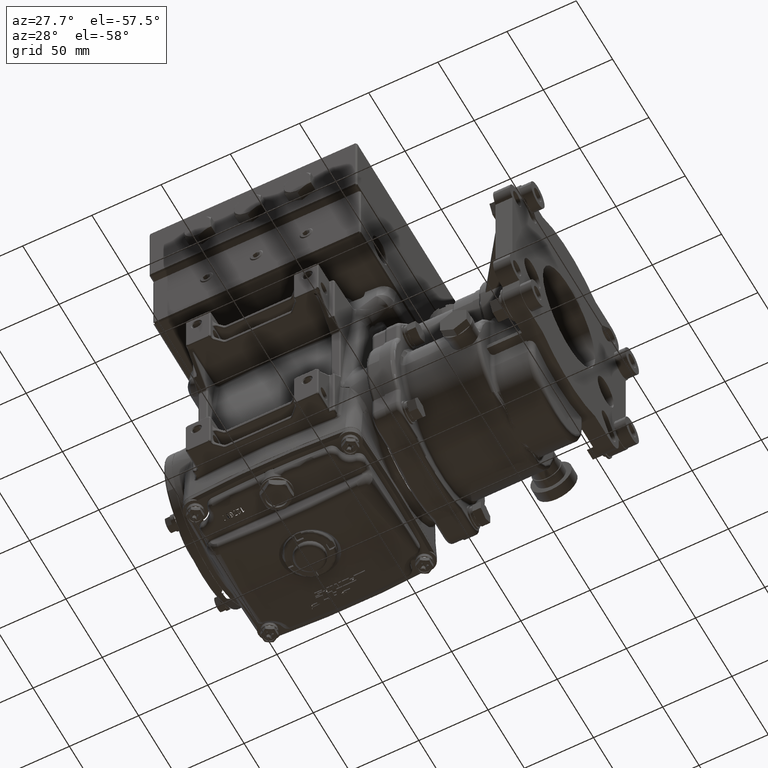
[diagram: clean part render]
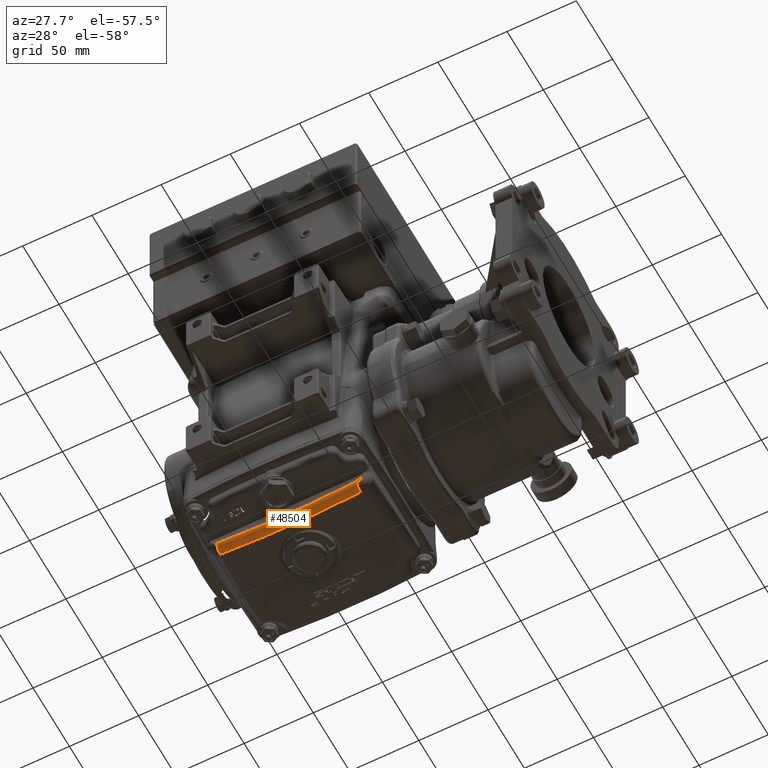
[diagram: same view with one face highlighted and labeled with its STEP entity id]
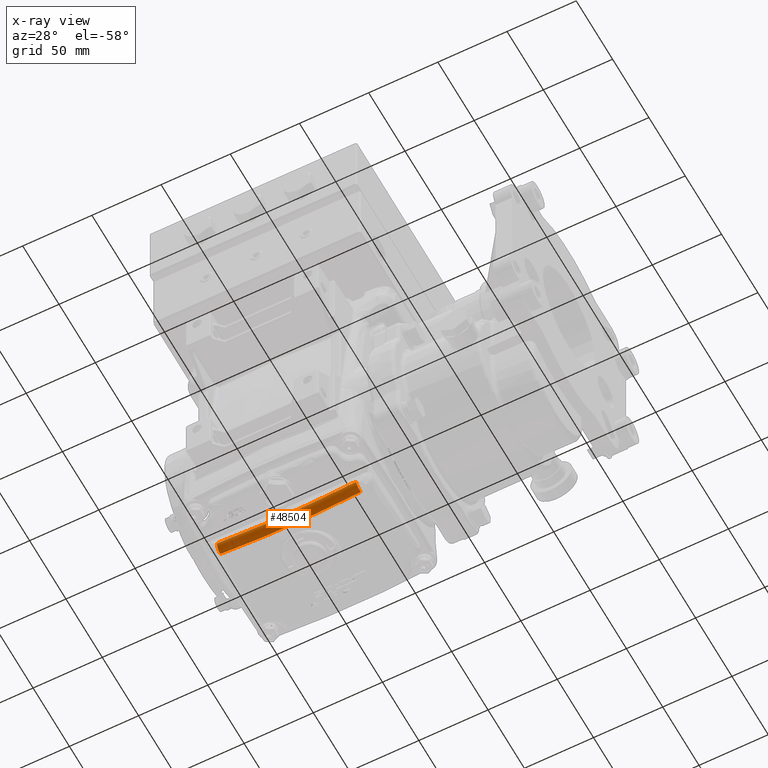
[diagram: x-ray of the same camera — body ghosted, the highlighted face saturated]
A machine part, auxiliary view. The second image highlights one B-rep face of the part: STEP entity #48504.
The next image is the same camera in x-ray: the body ghosted, the highlighted face saturated — about 0% of this face is hidden behind the body in this view.
In plain terms, the highlighted toroidal blend (fillet) surface has major radius 494.565 mm and minor (blend) radius 5 mm.
Its self-contained STEP definition (entity closure, byte-faithful):
#5170 = AXIS2_PLACEMENT_3D ( 'NONE', #35753, #47091, #60789 ) ;
#5577 = CARTESIAN_POINT ( 'NONE',  ( -1.977110063958240405, -1.062992125984252745, -3.031846117286617126 ) ) ;
#5794 = DIRECTION ( 'NONE',  ( -0.000000000000000000, -1.000000000000000000, -0.000000000000000000 ) ) ;
#6471 = DIRECTION ( 'NONE',  ( 0.1015409169292104258, 0.000000000000000000, 0.9948313636939555282 ) ) ;
#9005 = VERTEX_POINT ( 'NONE', #42267 ) ;
#11753 = DIRECTION ( 'NONE',  ( 0.000000000000000000, 1.000000000000000000, -0.000000000000000000 ) ) ;
#12626 = DIRECTION ( 'NONE',  ( 1.000000000000000000, 0.000000000000000000, -5.275390458629019537E-15 ) ) ;
#15401 = EDGE_CURVE ( 'NONE', #87120, #9005, #84652, .T. ) ;
#16635 = EDGE_CURVE ( 'NONE', #9005, #47572, #36641, .T. ) ;
#17706 = DIRECTION ( 'NONE',  ( -1.000000000000000000, 0.000000000000000000, 5.333931207850942581E-15 ) ) ;
#19866 = ORIENTED_EDGE ( 'NONE', *, *, #40356, .T. ) ;
#21180 = CARTESIAN_POINT ( 'NONE',  ( 0.000000000000000000, -1.259842519685039353, 16.33858267716535551 ) ) ;
#30845 = CARTESIAN_POINT ( 'NONE',  ( 0.000000000000000000, -1.062992125984252745, 16.33858267716535551 ) ) ;
#33373 = VERTEX_POINT ( 'NONE', #88096 ) ;
#35753 = CARTESIAN_POINT ( 'NONE',  ( 1.977110063958240405, -1.062992125984252745, -3.031846117286617126 ) ) ;
#36641 = CIRCLE ( 'NONE', #43887, 0.1968503937007871629 ) ;
#37273 = FACE_OUTER_BOUND ( 'NONE', #55963, .T. ) ;
#40356 = EDGE_CURVE ( 'NONE', #87120, #33373, #84086, .T. ) ;
#40779 = CARTESIAN_POINT ( 'NONE',  ( 1.996984731275934122, -1.045073800574857437, -3.226869221167618651 ) ) ;
#42267 = CARTESIAN_POINT ( 'NONE',  ( -1.996984731275934122, -1.045073800574857437, -3.226869221167618651 ) ) ;
#43494 = ORIENTED_EDGE ( 'NONE', *, *, #15401, .F. ) ;
#43887 = AXIS2_PLACEMENT_3D ( 'NONE', #5577, #81957, #6471 ) ;
#46555 = CARTESIAN_POINT ( 'NONE',  ( 0.000000000000000000, -1.045073723253141296, 16.33858267716535551 ) ) ;
#47091 = DIRECTION ( 'NONE',  ( -0.9948313636939557503, 0.000000000000000000, -0.1015409169292097735 ) ) ;
#47572 = VERTEX_POINT ( 'NONE', #85761 ) ;
#48504 = ADVANCED_FACE ( 'NONE', ( #37273 ), #75448, .T. ) ;
#49852 = EDGE_CURVE ( 'NONE', #47572, #33373, #63633, .T. ) ;
#55963 = EDGE_LOOP ( 'NONE', ( #81087, #76297, #43494, #19866 ) ) ;
#60789 = DIRECTION ( 'NONE',  ( -0.1015409169292104258, 0.000000000000000000, 0.9948313636939555282 ) ) ;
#63633 = CIRCLE ( 'NONE', #88482, 19.47106766168560554 ) ;
#65643 = DIRECTION ( 'NONE',  ( 0.000000000000000000, 1.000000000000000000, 0.000000000000000000 ) ) ;
#75448 = TOROIDAL_SURFACE ( 'NONE', #87137, 19.47106766168560554, 0.1968503937007874127 ) ;
#76297 = ORIENTED_EDGE ( 'NONE', *, *, #16635, .F. ) ;
#78749 = AXIS2_PLACEMENT_3D ( 'NONE', #46555, #11753, #17706 ) ;
#81087 = ORIENTED_EDGE ( 'NONE', *, *, #49852, .F. ) ;
#81957 = DIRECTION ( 'NONE',  ( -0.9948313636939557503, -0.000000000000000000, 0.1015409169292097735 ) ) ;
#84086 = CIRCLE ( 'NONE', #5170, 0.1968503937007871629 ) ;
#84652 = CIRCLE ( 'NONE', #78749, 19.66710084342715703 ) ;
#85761 = CARTESIAN_POINT ( 'NONE',  ( -1.977110063958240405, -1.259842519685039353, -3.031846117286614906 ) ) ;
#86669 = DIRECTION ( 'NONE',  ( 1.000000000000000000, 0.000000000000000000, 0.000000000000000000 ) ) ;
#87120 = VERTEX_POINT ( 'NONE', #40779 ) ;
#87137 = AXIS2_PLACEMENT_3D ( 'NONE', #30845, #65643, #86669 ) ;
#88096 = CARTESIAN_POINT ( 'NONE',  ( 1.977110063958240405, -1.259842519685039353, -3.031846117286614906 ) ) ;
#88482 = AXIS2_PLACEMENT_3D ( 'NONE', #21180, #5794, #12626 ) ;